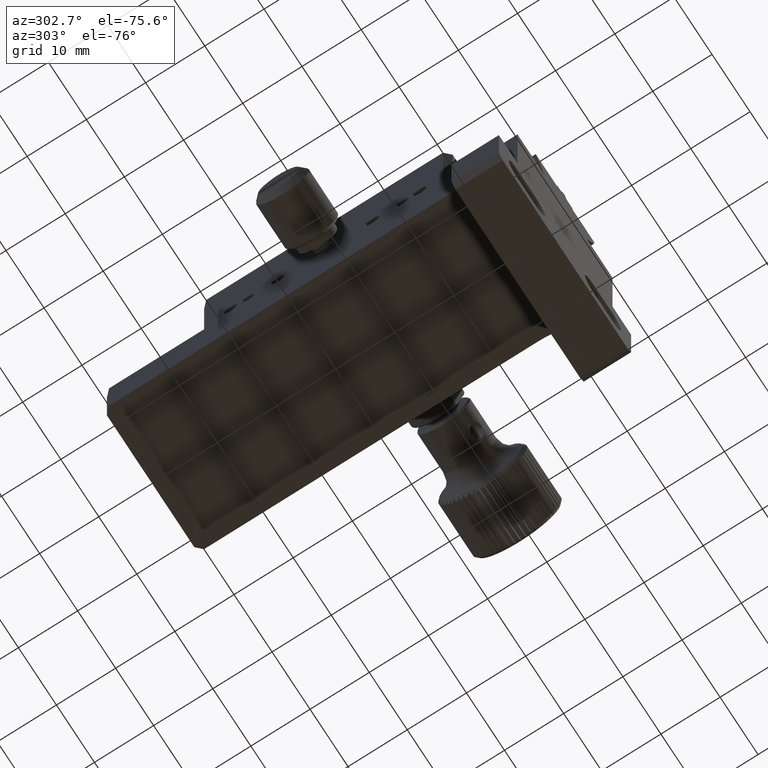
[diagram: clean part render]
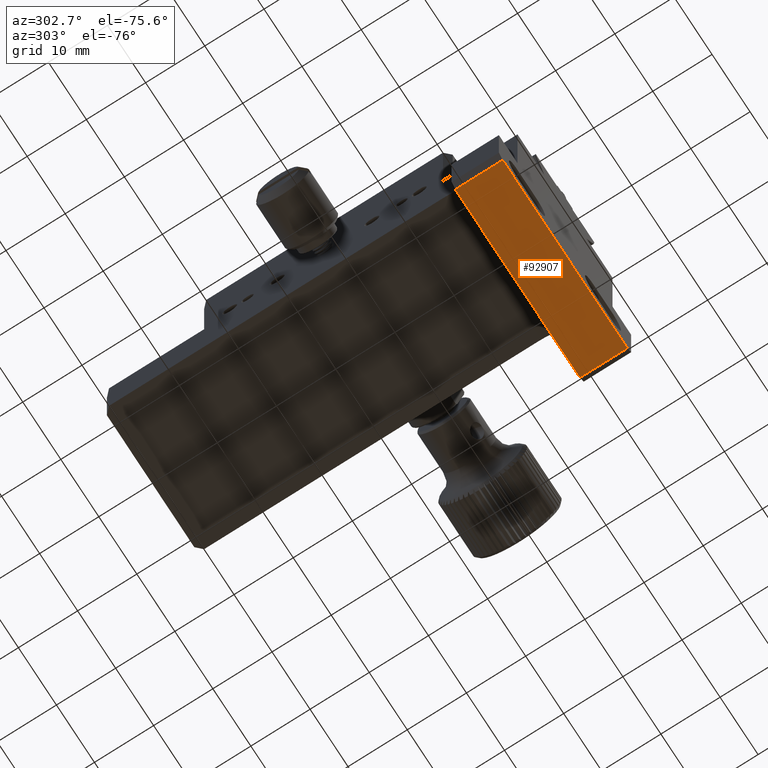
[diagram: same view with one face highlighted and labeled with its STEP entity id]
A machine part, auxiliary view. The second image highlights one B-rep face of the part: STEP entity #92907.
In plain terms, the highlighted planar face has unit normal (0, 0, -1).
Its self-contained STEP definition (entity closure, byte-faithful):
#1192 = VECTOR ( 'NONE', #79582, 1000.000000000000000 ) ;
#5419 = FACE_OUTER_BOUND ( 'NONE', #85650, .T. ) ;
#12919 = VECTOR ( 'NONE', #61265, 1000.000000000000000 ) ;
#13120 = CARTESIAN_POINT ( 'NONE',  ( 47.31116878375737400, 13.63550279078417660, 45.95689688578996623 ) ) ;
#16358 = CARTESIAN_POINT ( 'NONE',  ( 47.31116878375739532, 21.63550279078418725, 45.95689688579003729 ) ) ;
#16542 = LINE ( 'NONE', #52471, #1192 ) ;
#18844 = DIRECTION ( 'NONE',  ( 1.000000000000000000, -0.000000000000000000, 0.000000000000000000 ) ) ;
#21003 = VERTEX_POINT ( 'NONE', #13120 ) ;
#23079 = CARTESIAN_POINT ( 'NONE',  ( 80.11116878375737826, 21.63550279078418015, 45.95689688579006571 ) ) ;
#24261 = DIRECTION ( 'NONE',  ( 1.993935029858399143E-16, 1.047444401652940007E-14, -1.000000000000000000 ) ) ;
#25112 = ORIENTED_EDGE ( 'NONE', *, *, #61270, .T. ) ;
#27776 = EDGE_CURVE ( 'NONE', #67641, #114018, #106044, .T. ) ;
#32494 = DIRECTION ( 'NONE',  ( 0.000000000000000000, 1.000000000000000000, 1.047444401652940007E-14 ) ) ;
#32823 = CARTESIAN_POINT ( 'NONE',  ( 80.11116878375740669, 13.63550279078418193, 45.95689688579000176 ) ) ;
#35214 = DIRECTION ( 'NONE',  ( -0.000000000000000000, -1.000000000000000000, -1.047444401652940007E-14 ) ) ;
#37053 = ORIENTED_EDGE ( 'NONE', *, *, #97239, .F. ) ;
#41329 = PLANE ( 'NONE',  #53606 ) ;
#42429 = VECTOR ( 'NONE', #18844, 1000.000000000000000 ) ;
#43723 = ORIENTED_EDGE ( 'NONE', *, *, #27776, .F. ) ;
#52471 = CARTESIAN_POINT ( 'NONE',  ( 47.31116878375736690, 21.63550279078418725, 45.95689688579005860 ) ) ;
#52478 = EDGE_CURVE ( 'NONE', #21003, #114018, #16542, .T. ) ;
#53606 = AXIS2_PLACEMENT_3D ( 'NONE', #77293, #24261, #32494 ) ;
#54149 = VERTEX_POINT ( 'NONE', #32823 ) ;
#61265 = DIRECTION ( 'NONE',  ( -1.000000000000000000, -0.000000000000000000, -0.000000000000000000 ) ) ;
#61270 = EDGE_CURVE ( 'NONE', #67641, #54149, #89995, .T. ) ;
#61845 = CARTESIAN_POINT ( 'NONE',  ( 63.71116878375735126, 21.63550279078418725, 45.95689688579006571 ) ) ;
#63707 = VECTOR ( 'NONE', #35214, 1000.000000000000000 ) ;
#67641 = VERTEX_POINT ( 'NONE', #23079 ) ;
#77293 = CARTESIAN_POINT ( 'NONE',  ( 81.11116878375734984, 21.63550279078418725, 45.95689688579006571 ) ) ;
#79582 = DIRECTION ( 'NONE',  ( 0.000000000000000000, 1.000000000000000000, 1.047444401652940007E-14 ) ) ;
#85650 = EDGE_LOOP ( 'NONE', ( #43723, #25112, #37053, #99656 ) ) ;
#89995 = LINE ( 'NONE', #96093, #63707 ) ;
#92907 = ADVANCED_FACE ( 'NONE', ( #5419 ), #41329, .T. ) ;
#96093 = CARTESIAN_POINT ( 'NONE',  ( 80.11116878375737826, 21.63550279078418725, 45.95689688579006571 ) ) ;
#97239 = EDGE_CURVE ( 'NONE', #21003, #54149, #99550, .T. ) ;
#99550 = LINE ( 'NONE', #110704, #42429 ) ;
#99656 = ORIENTED_EDGE ( 'NONE', *, *, #52478, .T. ) ;
#106044 = LINE ( 'NONE', #61845, #12919 ) ;
#110704 = CARTESIAN_POINT ( 'NONE',  ( 63.71116878375735126, 13.63550279078418548, 45.95689688578996623 ) ) ;
#114018 = VERTEX_POINT ( 'NONE', #16358 ) ;